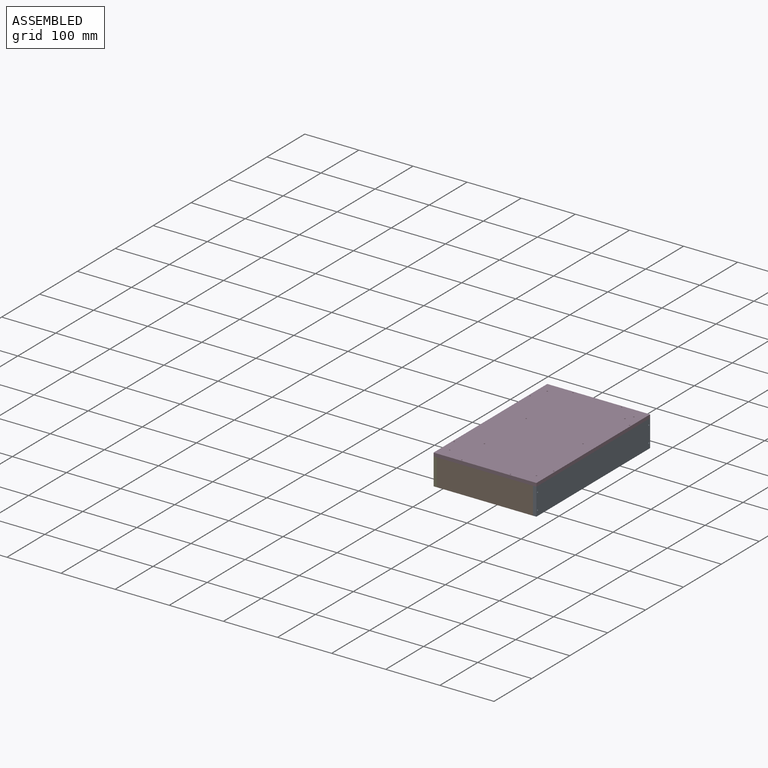
[diagram: assembled view]
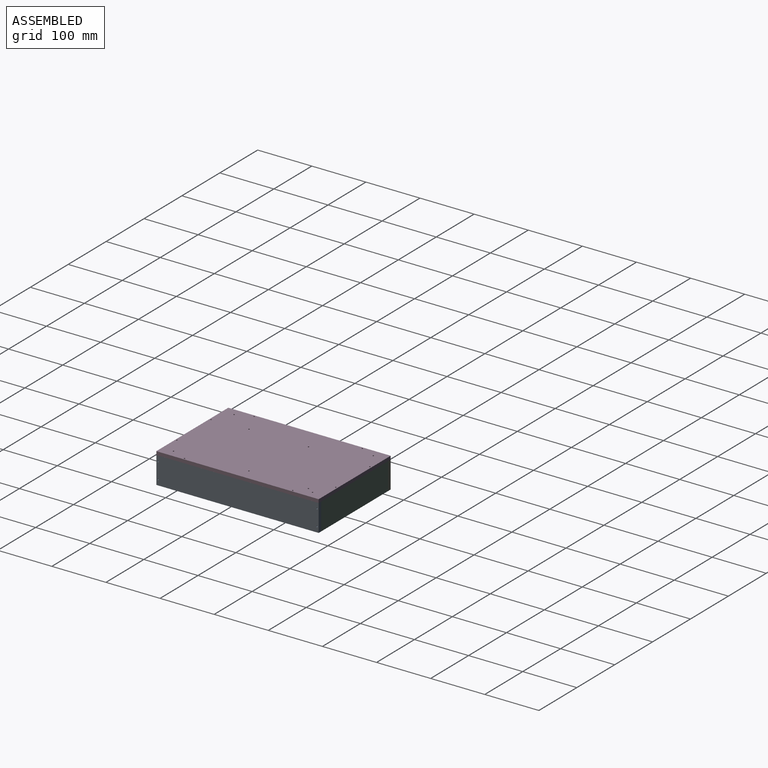
[diagram: assembled view, second angle]
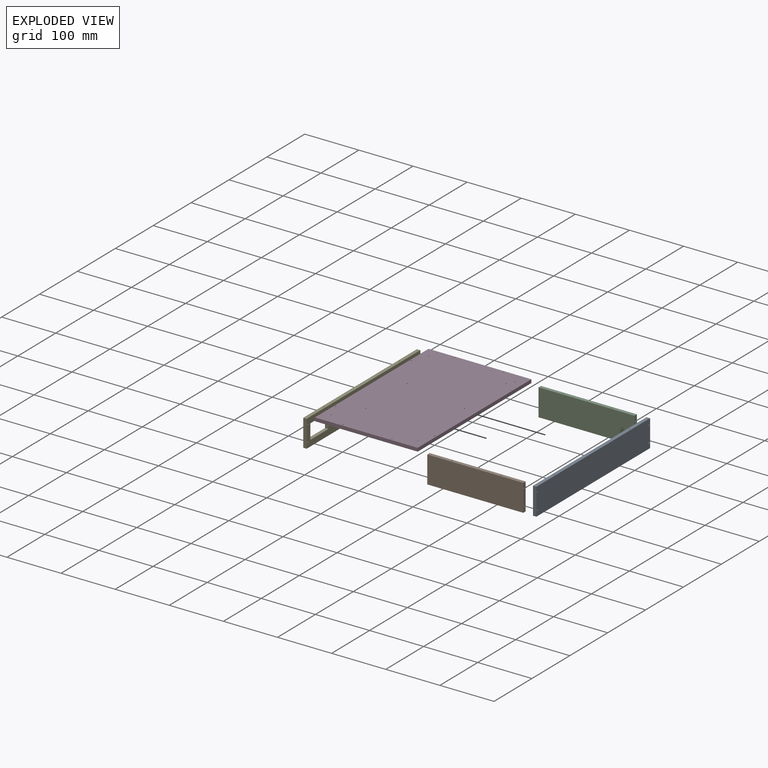
[diagram: exploded view]
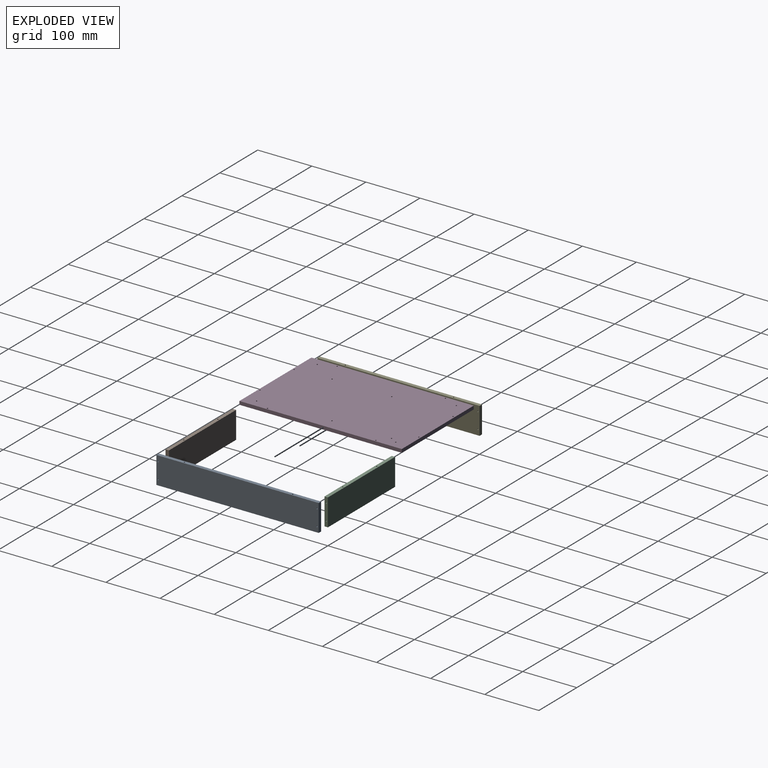
[diagram: exploded view, second angle]
ASSEMBLY  parts=5 mates=8
PART A: 14 faces, bbox 300x6.4x50 mm
  f0: plane 50x6.35mm, normal (1,0,0), area 317.5mm2, adj f1,f3,f4,f5
  f1: plane 300x6.35mm, normal (0,0,1), area 1896mm2, adj f0,f2,f4,f5,f10,f12
  f2: plane 50x6.35mm, normal (-1,0,0), area 317.5mm2, adj f1,f3,f4,f5
  f3: plane 300x6.35mm, normal (0,0,-1), area 1905mm2, adj f0,f2,f4,f5
  f4: plane 300x50mm, normal (0,-1,0), area 14981.9mm2, adj f0,f1,f2,f3,f6,f7,f8,f9
  f5: plane 300x50mm, normal (0,1,0), area 14981.9mm2, adj f0,f1,f2,f3,f6,f7,f8,f9
  f6: cylinder r=1.2mm len=6.35mm, axis (0,-1,0), area 47.9mm2, adj f4,f5
  f7: cylinder r=1.2mm len=6.35mm, axis (0,-1,0), area 47.9mm2, adj f4,f5
  f8: cylinder r=1.2mm len=6.35mm, axis (0,-1,0), area 47.9mm2, adj f4,f5
  f9: cylinder r=1.2mm len=6.35mm, axis (0,-1,0), area 47.9mm2, adj f4,f5
  f10: cylinder r=1.2mm len=12mm, axis (0,0,1), area 90.5mm2, adj f1,f11
  f11: cone r=0mm half-angle=59deg, axis (0,0,1), area 5.3mm2, adj f10
  f12: cylinder r=1.2mm len=12mm, axis (0,0,1), area 90.5mm2, adj f1,f13
  f13: cone r=0mm half-angle=59deg, axis (0,0,1), area 5.3mm2, adj f12
PART B: 18 faces, bbox 177.3x6.4x50 mm
  f0: plane 50x6.35mm, normal (1,0,0), area 308.5mm2, adj f1,f3,f4,f5,f14,f16
  f1: plane 177.3x6.35mm, normal (0,0,1), area 1116.8mm2, adj f0,f2,f4,f5,f6,f8
  f2: plane 50x6.35mm, normal (-1,0,0), area 308.5mm2, adj f1,f3,f4,f5,f10,f12
  f3: plane 177.3x6.35mm, normal (0,0,-1), area 1125.9mm2, adj f0,f2,f4,f5
  f4: plane 177.3x50mm, normal (0,-1,0), area 8865mm2, adj f0,f1,f2,f3
  f5: plane 177.3x50mm, normal (0,1,0), area 8865mm2, adj f0,f1,f2,f3
  f6: cylinder r=1.2mm len=12mm, axis (0,0,1), area 90.5mm2, adj f1,f7
  f7: cone r=0mm half-angle=59deg, axis (0,0,1), area 5.3mm2, adj f6
  f8: cylinder r=1.2mm len=12mm, axis (0,0,1), area 90.5mm2, adj f1,f9
  f9: cone r=0mm half-angle=59deg, axis (0,0,1), area 5.3mm2, adj f8
  f10: cylinder r=1.2mm len=12mm, axis (-1,0,0), area 90.5mm2, adj f2,f11
  f11: cone r=0mm half-angle=59deg, axis (-1,0,0), area 5.3mm2, adj f10
  f12: cylinder r=1.2mm len=12mm, axis (-1,0,0), area 90.5mm2, adj f2,f13
  f13: cone r=0mm half-angle=59deg, axis (-1,0,0), area 5.3mm2, adj f12
  f14: cylinder r=1.2mm len=12mm, axis (1,0,0), area 90.5mm2, adj f0,f15
  f15: cone r=0mm half-angle=59deg, axis (1,0,0), area 5.3mm2, adj f14
  f16: cylinder r=1.2mm len=12mm, axis (1,0,0), area 90.5mm2, adj f0,f17
  f17: cone r=0mm half-angle=59deg, axis (1,0,0), area 5.3mm2, adj f16
PART C: same geometry as B
PART D: 22 faces, bbox 300x190x6.4 mm
  f0: plane 190x6.35mm, normal (1,0,0), area 1206.5mm2, adj f1,f3,f4,f5
  f1: plane 300x6.35mm, normal (0,1,0), area 1905mm2, adj f0,f2,f4,f5
  f2: plane 190x6.35mm, normal (-1,0,0), area 1206.5mm2, adj f1,f3,f4,f5
  f3: plane 300x6.35mm, normal (0,-1,0), area 1905mm2, adj f0,f2,f4,f5
  f4: plane 300x190mm, normal (0,0,1), area 56927.6mm2, adj f0,f1,f2,f3,f6,f7,f8,f9
  f5: plane 300x190mm, normal (0,0,-1), area 56927.6mm2, adj f0,f1,f2,f3,f6,f7,f8,f9
  f6: cylinder r=1.2mm len=6.35mm, axis (0,0,1), area 47.9mm2, adj f4,f5
  f7: cylinder r=1.2mm len=6.35mm, axis (0,0,1), area 47.9mm2, adj f4,f5
  f8: cylinder r=1.2mm len=6.35mm, axis (0,0,1), area 47.9mm2, adj f4,f5
  f9: cylinder r=1.2mm len=6.35mm, axis (0,0,1), area 47.9mm2, adj f4,f5
  f10: cylinder r=1.2mm len=6.35mm, axis (0,0,1), area 47.9mm2, adj f4,f5
  f11: cylinder r=1.2mm len=6.35mm, axis (0,0,1), area 47.9mm2, adj f4,f5
  f12: cylinder r=1.2mm len=6.35mm, axis (0,0,1), area 47.9mm2, adj f4,f5
  f13: cylinder r=1.2mm len=6.35mm, axis (0,0,1), area 47.9mm2, adj f4,f5
  f14: cylinder r=1.2mm len=6.35mm, axis (0,0,1), area 47.9mm2, adj f4,f5
  f15: cylinder r=1.2mm len=6.35mm, axis (0,0,1), area 47.9mm2, adj f4,f5
  f16: cylinder r=1.2mm len=6.35mm, axis (0,0,1), area 47.9mm2, adj f4,f5
  f17: cylinder r=1.2mm len=6.35mm, axis (0,0,1), area 47.9mm2, adj f4,f5
  f18: cylinder r=1.2mm len=6.35mm, axis (0,0,1), area 47.9mm2, adj f4,f5
  f19: cylinder r=1.2mm len=6.35mm, axis (0,0,1), area 47.9mm2, adj f4,f5
  f20: cylinder r=1.2mm len=6.35mm, axis (0,0,1), area 47.9mm2, adj f4,f5
  f21: cylinder r=1.2mm len=6.35mm, axis (0,0,1), area 47.9mm2, adj f4,f5
PART E: 19 faces, bbox 300x6.4x50 mm
  f0: plane 50x6.35mm, normal (1,0,0), area 317.5mm2, adj f1,f8,f9,f10
  f1: plane 300x6.35mm, normal (0,0,1), area 1896mm2, adj f0,f2,f9,f10,f15,f16
  f2: plane 50x6.35mm, normal (-1,0,0), area 317.5mm2, adj f1,f8,f9,f10
  f3: plane 47.5x6.35mm, normal (0,0,-1), area 297.1mm2, adj f4,f6,f9,f10,f15
  f4: plane 28x6.35mm, normal (-1,0,0), area 177.8mm2, adj f3,f5,f9,f10
  f5: plane 47.5x6.35mm, normal (0,0,1), area 301.6mm2, adj f4,f6,f9,f10
  f6: plane 28x6.35mm, normal (1,0,0), area 177.8mm2, adj f3,f5,f9,f10
  f7: cylinder r=5mm len=10mm, axis (0,1,0), area 199.5mm2, adj f9,f10
  f8: plane 300x6.35mm, normal (0,0,-1), area 1905mm2, adj f0,f2,f9,f10
  f9: plane 300x50mm, normal (0,-1,0), area 13549.6mm2, adj f0,f1,f2,f3,f4,f5,f6,f7
  f10: plane 300x50mm, normal (0,1,0), area 13549.6mm2, adj f0,f1,f2,f3,f4,f5,f6,f7
  f11: cylinder r=1.2mm len=6.35mm, axis (0,-1,0), area 47.9mm2, adj f9,f10
  f12: cylinder r=1.2mm len=6.35mm, axis (0,-1,0), area 47.9mm2, adj f9,f10
  f13: cylinder r=1.2mm len=6.35mm, axis (0,-1,0), area 47.9mm2, adj f9,f10
  f14: cylinder r=1.2mm len=6.35mm, axis (0,-1,0), area 47.9mm2, adj f9,f10
  f15: cylinder r=1.2mm len=11mm, axis (0,0,1), area 82.9mm2, adj f1,f3
  f16: cylinder r=1.2mm len=12mm, axis (0,0,1), area 90.5mm2, adj f1,f17
  f17: cone r=0mm half-angle=59deg, axis (0,0,1), area 5.3mm2, adj f16
  f18: cylinder r=2.75mm len=6.35mm, axis (0,-1,0), area 109.7mm2, adj f9,f10
PLACE A rot(axis=(0,0,1),90deg) t=(76.78,19.01,13.02)mm
PLACE B t=(-15.05,-127.81,13.02)mm
PLACE C rot(axis=(0,0,1),180deg) t=(-15.05,165.84,13.02)mm
PLACE D rot(axis=(0,0,1),90deg) t=(-15.05,19.01,38.02)mm
PLACE E rot(axis=(0,0,1),90deg) t=(-106.87,19.01,13.02)mm
MATE fastened B.f10 <-> A.f6  axis (1,0,0) through (73.6,-127.81,28.02)mm
MATE planar D.f3 <-> A.f6  axis (1,0,0) through (79.95,19.01,41.2)mm
MATE planar E.f9 <-> B.f2  axis (1,0,0) through (-103.7,30.97,12.99)mm
MATE fastened E.f11 <-> B.f10  axis (1,0,0) through (-103.7,-127.81,28.02)mm
MATE fastened C.f10 <-> A.f8  axis (1,0,0) through (73.6,165.84,28.02)mm
MATE planar C.f2 <-> A.f5  axis (1,0,0) through (73.6,169.01,13.02)mm
MATE planar C.f1 <-> A.f1  axis (0,0,1) through (-15.05,165.84,38.02)mm
MATE fastened D.f17 <-> A.f10  axis (0,0,-1) through (76.78,-80.99,38.02)mm
